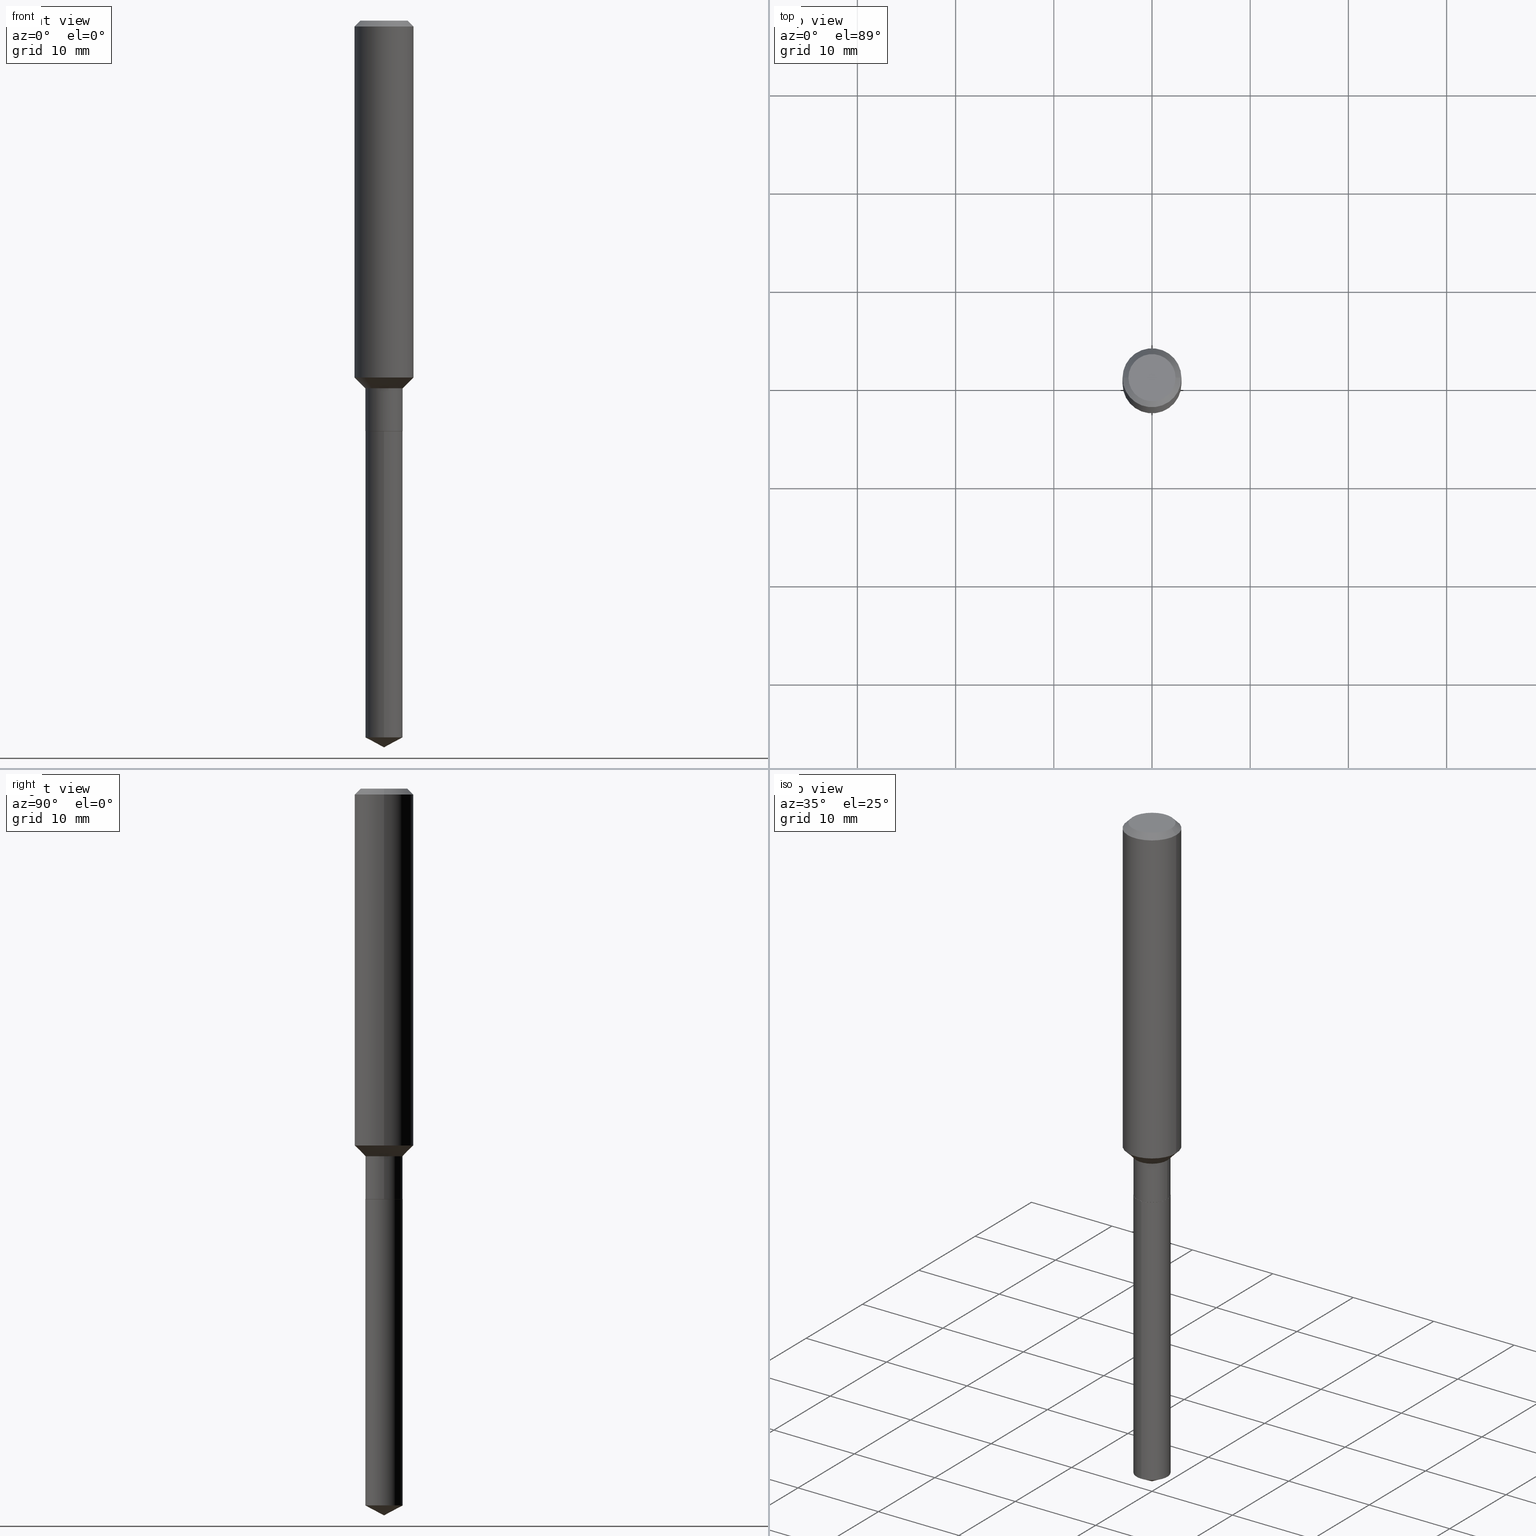
[diagram: canonical four-view strip — front | top / right | iso, engineering-drawing reading convention]
A machine part, canonical four-view strip (front | top / right | iso — engineering-drawing reading convention). The complete STEP part file that produces these views, byte-faithful:
ISO-10303-21;
HEADER;
FILE_DESCRIPTION (( 'STEP AP203' ),
    '1' );
FILE_NAME ('65168.STEP',
    '2024-04-24T20:52:02',
    ( '' ),
    ( '' ),
    'SwSTEP 2.0',
    'SolidWorks 2023',
    '' );
FILE_SCHEMA (( 'CONFIG_CONTROL_DESIGN' ));
ENDSEC;

DATA;
#1 = ORIENTED_EDGE ( 'NONE', *, *, #10, .F. ) ;
#2 = LINE ( 'NONE', #63, #98 ) ;
#3 = VERTEX_POINT ( 'NONE', #489 ) ;
#4 = DIRECTION ( 'NONE',  ( 0.7071067811865486830, -2.468850131082268893E-15, 0.7071067811865464625 ) ) ;
#5 = EDGE_LOOP ( 'NONE', ( #285, #197, #1, #220 ) ) ;
#6 = APPROVAL_ROLE ( '' ) ;
#7 = DATE_TIME_ROLE ( 'classification_date' ) ;
#8 = DIRECTION ( 'NONE',  ( 1.000000000000000000, 0.000000000000000000, 0.000000000000000000 ) ) ;
#9 = VECTOR ( 'NONE', #4, 39.37007874015748143 ) ;
#10 = EDGE_CURVE ( 'NONE', #411, #318, #23, .T. ) ;
#11 = PERSON_AND_ORGANIZATION_ROLE ( 'design_supplier' ) ;
#12 = CARTESIAN_POINT ( 'NONE',  ( -0.07479999999999999150, -4.913304607510389243E-15, -1.473700000000000232 ) ) ;
#13 = CARTESIAN_POINT ( 'NONE',  ( 4.024508014338879870E-29, -5.745930839334164827E-15, -1.645700000000000163 ) ) ;
#14 = CARTESIAN_POINT ( 'NONE',  ( 4.023285279935787629E-29, -5.744185098664743323E-15, -1.645200000000000218 ) ) ;
#15 = CARTESIAN_POINT ( 'NONE',  ( -5.223256082908925685E-16, -0.07480000000000575078, -1.645699999999999941 ) ) ;
#16 = CARTESIAN_POINT ( 'NONE',  ( -8.915570110515794441E-28, 1.272849057502987165E-13, 36.45667874015747856 ) ) ;
#17 = DIRECTION ( 'NONE',  ( -2.445522096007376071E-29, 3.491405024784630103E-15, 1.000000000000000000 ) ) ;
#18 = AXIS2_PLACEMENT_3D ( 'NONE', #317, #228, #429 ) ;
#19 = DIRECTION ( 'NONE',  ( -2.445468806185136877E-29, 3.491481338843145188E-15, 1.000000000000000000 ) ) ;
#20 = AXIS2_PLACEMENT_3D ( 'NONE', #253, #109, #381 ) ;
#21 = EDGE_LOOP ( 'NONE', ( #212, #320, #57, #157 ) ) ;
#22 = CARTESIAN_POINT ( 'NONE',  ( 4.024508014338879870E-29, -5.745930839334164827E-15, -1.645700000000000163 ) ) ;
#23 = CIRCLE ( 'NONE', #359, 0.07479999999999999150 ) ;
#24 = ADVANCED_FACE ( 'NONE', ( #150 ), #121, .T. ) ;
#25 = DIRECTION ( 'NONE',  ( -6.982962677686265922E-15, -1.000000000000000000, 3.652203200085913145E-15 ) ) ;
#26 = SECURITY_CLASSIFICATION ( '', '', #344 ) ;
#27 = EDGE_CURVE ( 'NONE', #441, #215, #427, .T. ) ;
#28 = CLOSED_SHELL ( 'NONE', ( #50, #62, #24, #280, #481 ) ) ;
#29 = ORIENTED_EDGE ( 'NONE', *, *, #80, .F. ) ;
#30 = CARTESIAN_POINT ( 'NONE',  ( 4.024508014338879870E-29, -5.745930839334164827E-15, -1.645700000000000163 ) ) ;
#31 = ORIENTED_EDGE ( 'NONE', *, *, #383, .F. ) ;
#32 = CYLINDRICAL_SURFACE ( 'NONE', #421, 0.1181000000000000799 ) ;
#33 = ORIENTED_EDGE ( 'NONE', *, *, #419, .T. ) ;
#34 = CARTESIAN_POINT ( 'NONE',  ( 0.1181000000000000799, -8.246878922347486570E-16, 5.758764772215004644E-30 ) ) ;
#35 = ORIENTED_EDGE ( 'NONE', *, *, #179, .F. ) ;
#36 = CONICAL_SURFACE ( 'NONE', #471, 0.07430000000000000493, 0.7853981633975507526 ) ;
#37 = CARTESIAN_POINT ( 'NONE',  ( 4.024508014338879870E-29, -5.745930839334164827E-15, -1.645700000000000163 ) ) ;
#38 = CARTESIAN_POINT ( 'NONE',  ( 7.124784074507891012E-29, -1.017185939920754238E-14, -2.913400000000000212 ) ) ;
#39 = ORIENTED_EDGE ( 'NONE', *, *, #383, .T. ) ;
#40 = CARTESIAN_POINT ( 'NONE',  ( 4.023285279935787629E-29, -5.744185098664743323E-15, -1.645200000000000218 ) ) ;
#41 = APPROVAL_ROLE ( '' ) ;
#42 = CARTESIAN_POINT ( 'NONE',  ( 0.07480000000000000537, -6.266510706955676124E-15, -1.645200000000000218 ) ) ;
#43 = EDGE_CURVE ( 'NONE', #318, #368, #270, .T. ) ;
#44 = CARTESIAN_POINT ( 'NONE',  ( 3.603887379675036317E-29, -5.145396049053143934E-15, -1.473700000000000232 ) ) ;
#45 = LINE ( 'NONE', #298, #309 ) ;
#46 = AXIS2_PLACEMENT_3D ( 'NONE', #352, #311, #468 ) ;
#47 = AXIS2_PLACEMENT_3D ( 'NONE', #30, #488, #446 ) ;
#48 = DIRECTION ( 'NONE',  ( 0.000000000000000000, 0.000000000000000000, 1.000000000000000000 ) ) ;
#49 = CARTESIAN_POINT ( 'NONE',  ( -5.223256082908624932E-16, -0.07480000000001003901, -2.873628134511721388 ) ) ;
#50 = ADVANCED_FACE ( 'NONE', ( #124 ), #244, .T. ) ;
#51 = ORIENTED_EDGE ( 'NONE', *, *, #92, .F. ) ;
#52 = CIRCLE ( 'NONE', #451, 0.09447999999999998066 ) ;
#53 = VERTEX_POINT ( 'NONE', #326 ) ;
#54 = ADVANCED_FACE ( 'NONE', ( #131 ), #36, .T. ) ;
#55 = CARTESIAN_POINT ( 'NONE',  ( -8.915570110515794441E-28, 1.272849057502987165E-13, 36.45667874015747856 ) ) ;
#56 =( GEOMETRIC_REPRESENTATION_CONTEXT ( 3 ) GLOBAL_UNCERTAINTY_ASSIGNED_CONTEXT ( ( #423 ) ) GLOBAL_UNIT_ASSIGNED_CONTEXT ( ( #347, #184, #194 ) ) REPRESENTATION_CONTEXT ( 'NONE', 'WORKASPACE' ) );
#57 = ORIENTED_EDGE ( 'NONE', *, *, #161, .F. ) ;
#58 = DIRECTION ( 'NONE',  ( -2.438088387897960049E-29, 3.491481338843145188E-15, 1.000000000000000000 ) ) ;
#59 = CONICAL_SURFACE ( 'NONE', #210, 0.1180999999999999966, 0.7853981633974459475 ) ;
#60 = AXIS2_PLACEMENT_3D ( 'NONE', #185, #146, #465 ) ;
#61 = FACE_OUTER_BOUND ( 'NONE', #333, .T. ) ;
#62 = ADVANCED_FACE ( 'NONE', ( #397 ), #410, .T. ) ;
#63 = CARTESIAN_POINT ( 'NONE',  ( -0.1181000000000000799, 8.391509709326788873E-16, -5.809262341591047988E-30 ) ) ;
#64 = VERTEX_POINT ( 'NONE', #464 ) ;
#65 = PLANE ( 'NONE',  #435 ) ;
#66 = CC_DESIGN_PERSON_AND_ORGANIZATION_ASSIGNMENT ( #144, #141, ( #87 ) ) ;
#67 = ORIENTED_EDGE ( 'NONE', *, *, #75, .T. ) ;
#68 = FACE_OUTER_BOUND ( 'NONE', #434, .T. ) ;
#69 = AXIS2_PLACEMENT_3D ( 'NONE', #473, #180, #460 ) ;
#70 = CARTESIAN_POINT ( 'NONE',  ( 3.497998580367219776E-29, -4.994214907081235414E-15, -1.430400000000000116 ) ) ;
#71 = VERTEX_POINT ( 'NONE', #278 ) ;
#72 = DIRECTION ( 'NONE',  ( -1.000000000000000000, 6.982962677686266711E-15, 0.000000000000000000 ) ) ;
#73 = APPROVAL_STATUS ( 'not_yet_approved' ) ;
#74 = EDGE_LOOP ( 'NONE', ( #249, #51, #140, #112 ) ) ;
#75 = EDGE_CURVE ( 'NONE', #64, #416, #380, .T. ) ;
#76 = VECTOR ( 'NONE', #342, 39.37007874015748143 ) ;
#77 = EDGE_LOOP ( 'NONE', ( #175, #379, #486, #340 ) ) ;
#78 = PERSON_AND_ORGANIZATION_ROLE ( 'design_owner' ) ;
#79 = APPROVAL_STATUS ( 'not_yet_approved' ) ;
#80 = EDGE_CURVE ( 'NONE', #64, #318, #467, .T. ) ;
#81 = PERSON_AND_ORGANIZATION_ROLE ( 'classification_officer' ) ;
#82 = CLOSED_SHELL ( 'NONE', ( #313, #123, #283, #155, #372, #474, #346, #231, #294, #217, #200, #54 ) ) ;
#83 = CIRCLE ( 'NONE', #282, 0.07480000000000000537 ) ;
#84 = EDGE_CURVE ( 'NONE', #3, #368, #263, .T. ) ;
#85 = APPROVAL ( #424, 'UNSPECIFIED' ) ;
#86 = CARTESIAN_POINT ( 'NONE',  ( -5.223256082908924699E-16, -0.07480000000000575078, -1.645699999999999941 ) ) ;
#87 = PRODUCT_DEFINITION_FORMATION_WITH_SPECIFIED_SOURCE ( 'ANY', '', #396, .NOT_KNOWN. ) ;
#88 = VERTEX_POINT ( 'NONE', #171 ) ;
#89 = CIRCLE ( 'NONE', #69, 0.07430000000000000493 ) ;
#90 = APPLICATION_PROTOCOL_DEFINITION ( 'international standard', 'config_control_design', 1994, #246 ) ;
#91 = ORIENTED_EDGE ( 'NONE', *, *, #179, .T. ) ;
#92 = EDGE_CURVE ( 'NONE', #71, #93, #122, .T. ) ;
#93 = VERTEX_POINT ( 'NONE', #137 ) ;
#94 = EDGE_CURVE ( 'NONE', #93, #71, #52, .T. ) ;
#95 = LENGTH_MEASURE_WITH_UNIT ( LENGTH_MEASURE( 0.02539999999999999897 ), #299 );
#96 = ORIENTED_EDGE ( 'NONE', *, *, #306, .T. ) ;
#97 = CARTESIAN_POINT ( 'NONE',  ( 0.1180999999999999966, -8.926936027602933910E-16, -0.02362000000000014435 ) ) ;
#98 = VECTOR ( 'NONE', #206, 39.37007874015748143 ) ;
#99 = CIRCLE ( 'NONE', #447, 0.07430000000000000493 ) ;
#100 = EDGE_LOOP ( 'NONE', ( #143, #375, #296, #169 ) ) ;
#101 = DIRECTION ( 'NONE',  ( 1.000000000000000000, -6.982962677686261977E-15, 0.000000000000000000 ) ) ;
#102 = VERTEX_POINT ( 'NONE', #86 ) ;
#103 = CYLINDRICAL_SURFACE ( 'NONE', #139, 0.1181000000000000799 ) ;
#104 = PERSON_AND_ORGANIZATION ( #431, #477 ) ;
#105 = VECTOR ( 'NONE', #229, 39.37007874015748143 ) ;
#106 = ORIENTED_EDGE ( 'NONE', *, *, #360, .F. ) ;
#107 = DIRECTION ( 'NONE',  ( -1.000000000000000000, 6.982962677686265922E-15, -4.876176775795935793E-29 ) ) ;
#108 = APPROVAL_DATE_TIME ( #376, #174 ) ;
#109 = DIRECTION ( 'NONE',  ( -2.445522096007376351E-29, 3.491405024784630103E-15, 1.000000000000000000 ) ) ;
#110 = FACE_OUTER_BOUND ( 'NONE', #100, .T. ) ;
#111 = CC_DESIGN_PERSON_AND_ORGANIZATION_ASSIGNMENT ( #261, #81, ( #26 ) ) ;
#112 = ORIENTED_EDGE ( 'NONE', *, *, #27, .T. ) ;
#113 = PERSON_AND_ORGANIZATION ( #431, #477 ) ;
#114 = APPROVAL_DATE_TIME ( #349, #85 ) ;
#115 = CIRCLE ( 'NONE', #20, 0.07480000000000000537 ) ;
#116 = APPROVAL_DATE_TIME ( #374, #267 ) ;
#117 = LINE ( 'NONE', #308, #271 ) ;
#118 = CARTESIAN_POINT ( 'NONE',  ( 3.603887379675036317E-29, -5.145396049053143934E-15, -1.473700000000000232 ) ) ;
#119 = DIRECTION ( 'NONE',  ( -2.445468806185136597E-29, 3.491481338843145583E-15, 1.000000000000000000 ) ) ;
#120 = APPROVAL_PERSON_ORGANIZATION ( #221, #174, #6 ) ;
#121 = CONICAL_SURFACE ( 'NONE', #128, 74.04434902938274377, 1.082104136236482050 ) ;
#122 = CIRCLE ( 'NONE', #315, 0.09447999999999998066 ) ;
#123 = ADVANCED_FACE ( 'NONE', ( #295 ), #166, .T. ) ;
#124 = FACE_OUTER_BOUND ( 'NONE', #21, .T. ) ;
#125 = VERTEX_POINT ( 'NONE', #38 ) ;
#126 = ORIENTED_EDGE ( 'NONE', *, *, #238, .T. ) ;
#127 = DIRECTION ( 'NONE',  ( 1.000000000000000000, -6.982962677686268288E-15, 0.000000000000000000 ) ) ;
#128 = AXIS2_PLACEMENT_3D ( 'NONE', #16, #426, #192 ) ;
#129 = CC_DESIGN_PERSON_AND_ORGANIZATION_ASSIGNMENT ( #182, #417, ( #430 ) ) ;
#130 = EDGE_LOOP ( 'NONE', ( #286, #39, #138, #134 ) ) ;
#131 = FACE_OUTER_BOUND ( 'NONE', #164, .T. ) ;
#132 = DIRECTION ( 'NONE',  ( 0.7071067811865459074, -7.319954787623251312E-15, -0.7071067811865492381 ) ) ;
#133 = EDGE_LOOP ( 'NONE', ( #227, #91 ) ) ;
#134 = ORIENTED_EDGE ( 'NONE', *, *, #306, .F. ) ;
#135 = CARTESIAN_POINT ( 'NONE',  ( 5.776197320209328408E-31, -8.246878922347560526E-17, -0.02362000000000014435 ) ) ;
#136 = APPROVAL_PERSON_ORGANIZATION ( #104, #85, #41 ) ;
#137 = CARTESIAN_POINT ( 'NONE',  ( 0.09447999999999998066, -7.704367267948738690E-16, -1.928573779296752193E-17 ) ) ;
#138 = ORIENTED_EDGE ( 'NONE', *, *, #364, .F. ) ;
#139 = AXIS2_PLACEMENT_3D ( 'NONE', #328, #245, #337 ) ;
#140 = ORIENTED_EDGE ( 'NONE', *, *, #191, .T. ) ;
#141 = PERSON_AND_ORGANIZATION_ROLE ( 'creator' ) ;
#142 = DIRECTION ( 'NONE',  ( -2.445468806185136597E-29, 3.491481338843145583E-15, 1.000000000000000000 ) ) ;
#143 = ORIENTED_EDGE ( 'NONE', *, *, #43, .F. ) ;
#144 = PERSON_AND_ORGANIZATION ( #431, #477 ) ;
#145 = DIRECTION ( 'NONE',  ( 1.000000000000000000, -6.982962677686262766E-15, 0.000000000000000000 ) ) ;
#146 = DIRECTION ( 'NONE',  ( -2.445468806185136597E-29, 3.491481338843145583E-15, 1.000000000000000000 ) ) ;
#147 = CONICAL_SURFACE ( 'NONE', #292, 0.07479999999999999150, 0.7853981633974498333 ) ;
#148 = COORDINATED_UNIVERSAL_TIME_OFFSET ( 5, 0, .BEHIND. ) ;
#149 = CARTESIAN_POINT ( 'NONE',  ( 0.07479999999999999150, -5.667721657344076734E-15, -1.473700000000000232 ) ) ;
#150 = FACE_OUTER_BOUND ( 'NONE', #336, .T. ) ;
#151 = CARTESIAN_POINT ( 'NONE',  ( 0.07479999999999999150, -5.223256082909327018E-16, 3.647380228295360164E-30 ) ) ;
#152 = EDGE_CURVE ( 'NONE', #403, #102, #354, .T. ) ;
#153 = VECTOR ( 'NONE', #19, 39.37007874015748143 ) ;
#154 = EDGE_CURVE ( 'NONE', #272, #88, #89, .T. ) ;
#155 = ADVANCED_FACE ( 'NONE', ( #439 ), #147, .T. ) ;
#156 = LINE ( 'NONE', #151, #153 ) ;
#157 = ORIENTED_EDGE ( 'NONE', *, *, #152, .F. ) ;
#158 = DIRECTION ( 'NONE',  ( -6.982962677686266711E-15, -1.000000000000000000, 3.652203200085913145E-15 ) ) ;
#159 = CIRCLE ( 'NONE', #268, 0.07480000000000000537 ) ;
#160 = ORIENTED_EDGE ( 'NONE', *, *, #448, .T. ) ;
#161 = EDGE_CURVE ( 'NONE', #102, #436, #190, .T. ) ;
#162 = DIRECTION ( 'NONE',  ( -0.7071067811865459074, 2.468850131082239706E-15, -0.7071067811865492381 ) ) ;
#163 = DIRECTION ( 'NONE',  ( -2.445468806185136597E-29, 3.491481338843145583E-15, 1.000000000000000000 ) ) ;
#164 = EDGE_LOOP ( 'NONE', ( #195, #250, #343, #418 ) ) ;
#165 = LINE ( 'NONE', #293, #196 ) ;
#166 = CONICAL_SURFACE ( 'NONE', #330, 0.1180999999999999966, 0.7853981633974459475 ) ;
#167 = DIRECTION ( 'NONE',  ( -2.445468806185136597E-29, 3.491481338843145583E-15, 1.000000000000000000 ) ) ;
#168 = DIRECTION ( 'NONE',  ( 1.000000000000000000, -6.982962677686266711E-15, 4.876176775795936353E-29 ) ) ;
#169 = ORIENTED_EDGE ( 'NONE', *, *, #238, .F. ) ;
#170 = EDGE_CURVE ( 'NONE', #403, #53, #115, .T. ) ;
#171 = CARTESIAN_POINT ( 'NONE',  ( 0.07430000000000000493, -6.264764966286254620E-15, -1.645700000000000163 ) ) ;
#172 = EDGE_LOOP ( 'NONE', ( #29, #67, #33, #106 ) ) ;
#173 = DIRECTION ( 'NONE',  ( -2.445468806185136877E-29, 3.491481338843145188E-15, 1.000000000000000000 ) ) ;
#174 = APPROVAL ( #79, 'UNSPECIFIED' ) ;
#175 = ORIENTED_EDGE ( 'NONE', *, *, #94, .F. ) ;
#176 = DATE_AND_TIME ( #385, #327 ) ;
#177 = AXIS2_PLACEMENT_3D ( 'NONE', #70, #163, #444 ) ;
#178 = AXIS2_PLACEMENT_3D ( 'NONE', #118, #260, #145 ) ;
#179 = EDGE_CURVE ( 'NONE', #436, #102, #83, .T. ) ;
#180 = DIRECTION ( 'NONE',  ( -2.445468806185136597E-29, 3.491481338843145583E-15, 1.000000000000000000 ) ) ;
#181 = ORIENTED_EDGE ( 'NONE', *, *, #433, .F. ) ;
#182 = PERSON_AND_ORGANIZATION ( #431, #477 ) ;
#183 = DIRECTION ( 'NONE',  ( 2.445522096007375791E-29, -3.491405024784630103E-15, -1.000000000000000000 ) ) ;
#184 =( NAMED_UNIT ( * ) PLANE_ANGLE_UNIT ( ) SI_UNIT ( $, .RADIAN. ) );
#185 = CARTESIAN_POINT ( 'NONE',  ( 3.603887379675036317E-29, -5.145396049053143934E-15, -1.473700000000000232 ) ) ;
#186 = LOCAL_TIME ( 16, 52, 2.000000000000000000, #303 ) ;
#187 = LINE ( 'NONE', #223, #76 ) ;
#188 = CARTESIAN_POINT ( 'NONE',  ( -0.07479999999999999150, 5.314859663485548786E-16, -3.679363447510669380E-30 ) ) ;
#189 = COORDINATED_UNIVERSAL_TIME_OFFSET ( 5, 0, .BEHIND. ) ;
#190 = CIRCLE ( 'NONE', #350, 0.07480000000000000537 ) ;
#191 = EDGE_CURVE ( 'NONE', #71, #441, #165, .T. ) ;
#192 = DIRECTION ( 'NONE',  ( -6.982962677686265922E-15, -1.000000000000000000, 3.541896320645598734E-15 ) ) ;
#193 = CC_DESIGN_APPROVAL ( #267, ( #87 ) ) ;
#194 =( NAMED_UNIT ( * ) SI_UNIT ( $, .STERADIAN. ) SOLID_ANGLE_UNIT ( ) );
#195 = ORIENTED_EDGE ( 'NONE', *, *, #487, .F. ) ;
#196 = VECTOR ( 'NONE', #162, 39.37007874015748143 ) ;
#197 = ORIENTED_EDGE ( 'NONE', *, *, #80, .T. ) ;
#198 = ORIENTED_EDGE ( 'NONE', *, *, #433, .T. ) ;
#199 = DIRECTION ( 'NONE',  ( -2.445522096007376351E-29, 3.491405024784630103E-15, 1.000000000000000000 ) ) ;
#200 = ADVANCED_FACE ( 'NONE', ( #287 ), #65, .F. ) ;
#201 = CIRCLE ( 'NONE', #224, 0.1180999999999999966 ) ;
#202 = LINE ( 'NONE', #97, #428 ) ;
#203 = ORIENTED_EDGE ( 'NONE', *, *, #362, .T. ) ;
#204 = FACE_OUTER_BOUND ( 'NONE', #452, .T. ) ;
#205 = VECTOR ( 'NONE', #393, 39.37007874015748143 ) ;
#206 = DIRECTION ( 'NONE',  ( -2.445468806185136877E-29, 3.491481338843145188E-15, 1.000000000000000000 ) ) ;
#207 = CIRCLE ( 'NONE', #18, 0.07480000000000000537 ) ;
#208 = EDGE_LOOP ( 'NONE', ( #445, #365, #399, #243 ) ) ;
#209 = FACE_OUTER_BOUND ( 'NONE', #130, .T. ) ;
#210 = AXIS2_PLACEMENT_3D ( 'NONE', #135, #412, #72 ) ;
#211 = CC_DESIGN_PERSON_AND_ORGANIZATION_ASSIGNMENT ( #226, #78, ( #396 ) ) ;
#212 = ORIENTED_EDGE ( 'NONE', *, *, #170, .T. ) ;
#213 = DIRECTION ( 'NONE',  ( -2.445468806185136597E-29, 3.491481338843145583E-15, 1.000000000000000000 ) ) ;
#214 = APPROVAL_ROLE ( '' ) ;
#215 = VERTEX_POINT ( 'NONE', #367 ) ;
#216 = DIRECTION ( 'NONE',  ( -6.982962677686265922E-15, -1.000000000000000000, 3.541896320645598734E-15 ) ) ;
#217 = ADVANCED_FACE ( 'NONE', ( #68 ), #484, .F. ) ;
#218 = DIRECTION ( 'NONE',  ( 1.000000000000000000, -6.982962677686268288E-15, 0.000000000000000000 ) ) ;
#219 = DIRECTION ( 'NONE',  ( -2.445468806185136597E-29, 3.491481338843145583E-15, 1.000000000000000000 ) ) ;
#220 = ORIENTED_EDGE ( 'NONE', *, *, #419, .F. ) ;
#221 = PERSON_AND_ORGANIZATION ( #431, #477 ) ;
#222 = DIRECTION ( 'NONE',  ( -2.445468806185136597E-29, 3.491481338843145583E-15, 1.000000000000000000 ) ) ;
#223 = CARTESIAN_POINT ( 'NONE',  ( -0.07430000000000000493, -5.217997586664410946E-15, -1.645700000000000163 ) ) ;
#224 = AXIS2_PLACEMENT_3D ( 'NONE', #478, #167, #239 ) ;
#225 = DESIGN_CONTEXT ( 'detailed design', #302, 'design' ) ;
#226 = PERSON_AND_ORGANIZATION ( #431, #477 ) ;
#227 = ORIENTED_EDGE ( 'NONE', *, *, #161, .T. ) ;
#228 = DIRECTION ( 'NONE',  ( -2.445522096007376351E-29, 3.491405024784630103E-15, 1.000000000000000000 ) ) ;
#229 = DIRECTION ( 'NONE',  ( -2.445468806185136877E-29, 3.491481338843145188E-15, 1.000000000000000000 ) ) ;
#230 = AXIS2_PLACEMENT_3D ( 'NONE', #40, #119, #101 ) ;
#231 = ADVANCED_FACE ( 'NONE', ( #61 ), #103, .T. ) ;
#232 = DIRECTION ( 'NONE',  ( 1.000000000000000000, -6.982962677686262766E-15, 0.000000000000000000 ) ) ;
#233 = DIRECTION ( 'NONE',  ( 1.000000000000000000, -6.982962677686261977E-15, 0.000000000000000000 ) ) ;
#234 = EDGE_CURVE ( 'NONE', #93, #215, #202, .T. ) ;
#235 = LOCAL_TIME ( 16, 52, 2.000000000000000000, #300 ) ;
#236 = CARTESIAN_POINT ( 'NONE',  ( 7.124785612542370113E-29, -1.017185939920754238E-14, -2.913400000000000212 ) ) ;
#237 = CONICAL_SURFACE ( 'NONE', #322, 0.07430000000000000493, 0.7853981633975507526 ) ;
#238 = EDGE_CURVE ( 'NONE', #368, #3, #440, .T. ) ;
#239 = DIRECTION ( 'NONE',  ( 1.000000000000000000, -6.982962677686266711E-15, 0.000000000000000000 ) ) ;
#240 = AXIS2_PLACEMENT_3D ( 'NONE', #363, #284, #442 ) ;
#241 = CIRCLE ( 'NONE', #60, 0.07479999999999999150 ) ;
#242 = DIRECTION ( 'NONE',  ( 2.438088387897960049E-29, -3.491481338843145188E-15, -1.000000000000000000 ) ) ;
#243 = ORIENTED_EDGE ( 'NONE', *, *, #355, .F. ) ;
#244 = CYLINDRICAL_SURFACE ( 'NONE', #485, 0.07480000000000000537 ) ;
#245 = DIRECTION ( 'NONE',  ( -2.445468806185136597E-29, 3.491481338843145583E-15, 1.000000000000000000 ) ) ;
#246 = APPLICATION_CONTEXT ( 'configuration controlled 3d designs of mechanical parts and assemblies' ) ;
#247 = CARTESIAN_POINT ( 'NONE',  ( 3.603887379675036317E-29, -5.145396049053143934E-15, -1.473700000000000232 ) ) ;
#248 = FACE_OUTER_BOUND ( 'NONE', #5, .T. ) ;
#249 = ORIENTED_EDGE ( 'NONE', *, *, #234, .F. ) ;
#250 = ORIENTED_EDGE ( 'NONE', *, *, #154, .T. ) ;
#251 = FACE_OUTER_BOUND ( 'NONE', #74, .T. ) ;
#252 = CALENDAR_DATE ( 2024, 24, 4 ) ;
#253 = CARTESIAN_POINT ( 'NONE',  ( 7.027433399596411155E-29, -1.003312529824280430E-14, -2.873628134511721388 ) ) ;
#254 = CARTESIAN_POINT ( 'NONE',  ( 0.000000000000000000, 0.000000000000000000, 0.000000000000000000 ) ) ;
#255 = ORIENTED_EDGE ( 'NONE', *, *, #154, .F. ) ;
#256 = SHAPE_DEFINITION_REPRESENTATION ( #357, #353 ) ;
#257 = CARTESIAN_POINT ( 'NONE',  ( 4.024508014338879870E-29, -5.745930839334164827E-15, -1.645700000000000163 ) ) ;
#258 = ORIENTED_EDGE ( 'NONE', *, *, #27, .F. ) ;
#259 = DIRECTION ( 'NONE',  ( -6.982962677686265922E-15, -1.000000000000000000, 3.652203200085913145E-15 ) ) ;
#260 = DIRECTION ( 'NONE',  ( -2.445468806185136597E-29, 3.491481338843145583E-15, 1.000000000000000000 ) ) ;
#261 = PERSON_AND_ORGANIZATION ( #431, #477 ) ;
#262 = DIRECTION ( 'NONE',  ( -2.445522096007376351E-29, 3.491405024784630103E-15, 1.000000000000000000 ) ) ;
#263 = CIRCLE ( 'NONE', #177, 0.1181000000000001632 ) ;
#264 = MECHANICAL_CONTEXT ( 'NONE', #246, 'mechanical' ) ;
#265 = CARTESIAN_POINT ( 'NONE',  ( 5.314859663486254817E-16, 0.07479999999999425997, -1.645700000000000385 ) ) ;
#266 = LINE ( 'NONE', #382, #305 ) ;
#267 = APPROVAL ( #73, 'UNSPECIFIED' ) ;
#268 = AXIS2_PLACEMENT_3D ( 'NONE', #14, #307, #233 ) ;
#269 = CARTESIAN_POINT ( 'NONE',  ( 0.000000000000000000, 0.000000000000000000, 0.000000000000000000 ) ) ;
#270 = LINE ( 'NONE', #420, #321 ) ;
#271 = VECTOR ( 'NONE', #472, 39.37007874015748854 ) ;
#272 = VERTEX_POINT ( 'NONE', #405 ) ;
#273 = CC_DESIGN_DATE_AND_TIME_ASSIGNMENT ( #176, #7, ( #26 ) ) ;
#274 = DIRECTION ( 'NONE',  ( 6.982962677686265922E-15, 1.000000000000000000, -3.491405024784630103E-15 ) ) ;
#275 = ORIENTED_EDGE ( 'NONE', *, *, #390, .F. ) ;
#276 = CONICAL_SURFACE ( 'NONE', #178, 0.07479999999999999150, 0.7853981633974498333 ) ;
#277 = ORIENTED_EDGE ( 'NONE', *, *, #92, .T. ) ;
#278 = CARTESIAN_POINT ( 'NONE',  ( -0.09447999999999998066, 7.009847083995354710E-16, -1.928573779297727792E-17 ) ) ;
#279 = DIRECTION ( 'NONE',  ( -0.7071067811865486830, 7.493145998870358893E-15, 0.7071067811865464625 ) ) ;
#280 = ADVANCED_FACE ( 'NONE', ( #204 ), #369, .T. ) ;
#281 = DIRECTION ( 'NONE',  ( 1.000000000000000000, -6.982962677686267499E-15, 4.875432709231658792E-29 ) ) ;
#282 = AXIS2_PLACEMENT_3D ( 'NONE', #257, #377, #25 ) ;
#283 = ADVANCED_FACE ( 'NONE', ( #209 ), #32, .T. ) ;
#284 = DIRECTION ( 'NONE',  ( -2.445468806185136597E-29, 3.491481338843145583E-15, 1.000000000000000000 ) ) ;
#285 = ORIENTED_EDGE ( 'NONE', *, *, #456, .T. ) ;
#286 = ORIENTED_EDGE ( 'NONE', *, *, #84, .T. ) ;
#287 = FACE_OUTER_BOUND ( 'NONE', #476, .T. ) ;
#288 = PRODUCT_RELATED_PRODUCT_CATEGORY ( 'detail', '', ( #396 ) ) ;
#289 = ORIENTED_EDGE ( 'NONE', *, *, #43, .T. ) ;
#290 = CARTESIAN_POINT ( 'NONE',  ( 4.716267017698007905E-46, -6.733579360998555036E-32, -1.928573779297252010E-17 ) ) ;
#291 = EDGE_LOOP ( 'NONE', ( #449, #198, #401 ) ) ;
#292 = AXIS2_PLACEMENT_3D ( 'NONE', #247, #142, #454 ) ;
#293 = CARTESIAN_POINT ( 'NONE',  ( -0.1180999999999999966, 7.422191030112725094E-16, -0.02362000000000014435 ) ) ;
#294 = ADVANCED_FACE ( 'NONE', ( #251 ), #59, .T. ) ;
#295 = FACE_OUTER_BOUND ( 'NONE', #77, .T. ) ;
#296 = ORIENTED_EDGE ( 'NONE', *, *, #325, .T. ) ;
#297 = DATE_AND_TIME ( #339, #425 ) ;
#298 = CARTESIAN_POINT ( 'NONE',  ( 5.314859663485952091E-16, 0.07479999999999425997, -1.645700000000000385 ) ) ;
#299 =( LENGTH_UNIT ( ) NAMED_UNIT ( * ) SI_UNIT ( $, .METRE. ) );
#300 = COORDINATED_UNIVERSAL_TIME_OFFSET ( 5, 0, .BEHIND. ) ;
#301 = CC_DESIGN_APPROVAL ( #85, ( #430 ) ) ;
#302 = APPLICATION_CONTEXT ( 'configuration controlled 3d designs of mechanical parts and assemblies' ) ;
#303 = COORDINATED_UNIVERSAL_TIME_OFFSET ( 5, 0, .BEHIND. ) ;
#304 = DIRECTION ( 'NONE',  ( -2.445468806185136597E-29, 3.491481338843145583E-15, 1.000000000000000000 ) ) ;
#305 = VECTOR ( 'NONE', #462, 39.37007874015748143 ) ;
#306 = EDGE_CURVE ( 'NONE', #3, #215, #373, .T. ) ;
#307 = DIRECTION ( 'NONE',  ( -2.445468806185136597E-29, 3.491481338843145583E-15, 1.000000000000000000 ) ) ;
#308 = CARTESIAN_POINT ( 'NONE',  ( 7.124608676386970473E-29, -1.017211057929974181E-14, -2.913400000000000212 ) ) ;
#309 = VECTOR ( 'NONE', #345, 39.37007874015748143 ) ;
#310 = DIRECTION ( 'NONE',  ( -1.000000000000000000, 6.982962677686266711E-15, 0.000000000000000000 ) ) ;
#311 = DIRECTION ( 'NONE',  ( -2.445468806185136597E-29, 3.491481338843145583E-15, 1.000000000000000000 ) ) ;
#312 = APPROVAL_PERSON_ORGANIZATION ( #413, #267, #214 ) ;
#313 = ADVANCED_FACE ( 'NONE', ( #386 ), #237, .T. ) ;
#314 = DIRECTION ( 'NONE',  ( -2.445468806185136597E-29, 3.491481338843145583E-15, 1.000000000000000000 ) ) ;
#315 = AXIS2_PLACEMENT_3D ( 'NONE', #406, #370, #335 ) ;
#316 = AXIS2_PLACEMENT_3D ( 'NONE', #269, #219, #168 ) ;
#317 = CARTESIAN_POINT ( 'NONE',  ( 7.027433399596411155E-29, -1.003312529824280430E-14, -2.873628134511721388 ) ) ;
#318 = VERTEX_POINT ( 'NONE', #12 ) ;
#319 = DIMENSIONAL_EXPONENTS ( 1.000000000000000000, 0.000000000000000000, 0.000000000000000000, 0.000000000000000000, 0.000000000000000000, 0.000000000000000000, 0.000000000000000000 ) ;
#320 = ORIENTED_EDGE ( 'NONE', *, *, #409, .T. ) ;
#321 = VECTOR ( 'NONE', #279, 39.37007874015748143 ) ;
#322 = AXIS2_PLACEMENT_3D ( 'NONE', #388, #304, #218 ) ;
#323 = ORIENTED_EDGE ( 'NONE', *, *, #325, .F. ) ;
#324 = AXIS2_PLACEMENT_3D ( 'NONE', #254, #443, #414 ) ;
#325 = EDGE_CURVE ( 'NONE', #411, #3, #341, .T. ) ;
#326 = CARTESIAN_POINT ( 'NONE',  ( 5.314859663486251858E-16, 0.07479999999998998561, -2.873628134511721388 ) ) ;
#327 = LOCAL_TIME ( 16, 52, 2.000000000000000000, #148 ) ;
#328 = CARTESIAN_POINT ( 'NONE',  ( 0.000000000000000000, 0.000000000000000000, 0.000000000000000000 ) ) ;
#329 = FACE_OUTER_BOUND ( 'NONE', #133, .T. ) ;
#330 = AXIS2_PLACEMENT_3D ( 'NONE', #432, #351, #310 ) ;
#331 = ORIENTED_EDGE ( 'NONE', *, *, #448, .F. ) ;
#332 = CYLINDRICAL_SURFACE ( 'NONE', #324, 0.07479999999999999150 ) ;
#333 = EDGE_LOOP ( 'NONE', ( #31, #126, #96, #258 ) ) ;
#334 = CARTESIAN_POINT ( 'NONE',  ( 0.000000000000000000, 0.000000000000000000, 0.000000000000000000 ) ) ;
#335 = DIRECTION ( 'NONE',  ( 1.000000000000000000, -6.982962677686267499E-15, 4.875432709231658792E-29 ) ) ;
#336 = EDGE_LOOP ( 'NONE', ( #181, #203, #331 ) ) ;
#337 = DIRECTION ( 'NONE',  ( 1.000000000000000000, -6.982962677686266711E-15, 4.876176775795936353E-29 ) ) ;
#338 = AXIS2_PLACEMENT_3D ( 'NONE', #463, #48, #8 ) ;
#339 = CALENDAR_DATE ( 2024, 24, 4 ) ;
#340 = ORIENTED_EDGE ( 'NONE', *, *, #191, .F. ) ;
#341 = LINE ( 'NONE', #149, #9 ) ;
#342 = DIRECTION ( 'NONE',  ( -0.7071067811866199593, 7.493145998870616062E-15, 0.7071067811864750752 ) ) ;
#343 = ORIENTED_EDGE ( 'NONE', *, *, #355, .T. ) ;
#344 = SECURITY_CLASSIFICATION_LEVEL ( 'unclassified' ) ;
#345 = DIRECTION ( 'NONE',  ( -2.445522096007376071E-29, 3.491405024784630103E-15, 1.000000000000000000 ) ) ;
#346 = ADVANCED_FACE ( 'NONE', ( #110 ), #276, .T. ) ;
#347 =( CONVERSION_BASED_UNIT ( 'INCH', #95 ) LENGTH_UNIT ( ) NAMED_UNIT ( #319 ) );
#348 = APPLICATION_PROTOCOL_DEFINITION ( 'international standard', 'config_control_design', 1994, #302 ) ;
#349 = DATE_AND_TIME ( #252, #235 ) ;
#350 = AXIS2_PLACEMENT_3D ( 'NONE', #450, #262, #259 ) ;
#351 = DIRECTION ( 'NONE',  ( 2.445468806185136597E-29, -3.491481338843145583E-15, -1.000000000000000000 ) ) ;
#352 = CARTESIAN_POINT ( 'NONE',  ( 5.776197320209328408E-31, -8.246878922347560526E-17, -0.02362000000000014435 ) ) ;
#353 = ADVANCED_BREP_SHAPE_REPRESENTATION ( '65168', ( #455, #459, #338 ), #56 ) ;
#354 = LINE ( 'NONE', #15, #402 ) ;
#355 = EDGE_CURVE ( 'NONE', #88, #416, #266, .T. ) ;
#356 = ORIENTED_EDGE ( 'NONE', *, *, #10, .T. ) ;
#357 = PRODUCT_DEFINITION_SHAPE ( 'NONE', 'NONE',  #430 ) ;
#358 = ORIENTED_EDGE ( 'NONE', *, *, #152, .T. ) ;
#359 = AXIS2_PLACEMENT_3D ( 'NONE', #44, #314, #232 ) ;
#360 = EDGE_CURVE ( 'NONE', #318, #411, #241, .T. ) ;
#361 = AXIS2_PLACEMENT_3D ( 'NONE', #55, #199, #216 ) ;
#362 = EDGE_CURVE ( 'NONE', #125, #403, #117, .T. ) ;
#363 = CARTESIAN_POINT ( 'NONE',  ( 3.497998580367219776E-29, -4.994214907081235414E-15, -1.430400000000000116 ) ) ;
#364 = EDGE_CURVE ( 'NONE', #215, #441, #201, .T. ) ;
#365 = ORIENTED_EDGE ( 'NONE', *, *, #487, .T. ) ;
#366 = DIRECTION ( 'NONE',  ( -2.445468806185136597E-29, 3.491481338843145583E-15, 1.000000000000000000 ) ) ;
#367 = CARTESIAN_POINT ( 'NONE',  ( 0.1180999999999999966, -9.071566814582237199E-16, -0.02362000000000014435 ) ) ;
#368 = VERTEX_POINT ( 'NONE', #482 ) ;
#369 = CYLINDRICAL_SURFACE ( 'NONE', #47, 0.07480000000000000537 ) ;
#370 = DIRECTION ( 'NONE',  ( -2.445468806185136597E-29, 3.491481338843145583E-15, 1.000000000000000000 ) ) ;
#371 = ORIENTED_EDGE ( 'NONE', *, *, #409, .F. ) ;
#372 = ADVANCED_FACE ( 'NONE', ( #248 ), #332, .T. ) ;
#373 = LINE ( 'NONE', #34, #395 ) ;
#374 = DATE_AND_TIME ( #458, #186 ) ;
#375 = ORIENTED_EDGE ( 'NONE', *, *, #360, .T. ) ;
#376 = DATE_AND_TIME ( #422, #398 ) ;
#377 = DIRECTION ( 'NONE',  ( -2.445522096007376351E-29, 3.491405024784630103E-15, 1.000000000000000000 ) ) ;
#378 = PLANE ( 'NONE',  #384 ) ;
#379 = ORIENTED_EDGE ( 'NONE', *, *, #234, .T. ) ;
#380 = CIRCLE ( 'NONE', #230, 0.07480000000000000537 ) ;
#381 = DIRECTION ( 'NONE',  ( -6.982962677686266711E-15, -1.000000000000000000, 0.000000000000000000 ) ) ;
#382 = CARTESIAN_POINT ( 'NONE',  ( 0.07430000000000000493, -6.264764966286254620E-15, -1.645700000000000163 ) ) ;
#383 = EDGE_CURVE ( 'NONE', #368, #441, #2, .T. ) ;
#384 = AXIS2_PLACEMENT_3D ( 'NONE', #37, #183, #274 ) ;
#385 = CALENDAR_DATE ( 2024, 24, 4 ) ;
#386 = FACE_OUTER_BOUND ( 'NONE', #208, .T. ) ;
#387 = CARTESIAN_POINT ( 'NONE',  ( 0.07479999999999999150, -5.667721657344076734E-15, -1.473700000000000232 ) ) ;
#388 = CARTESIAN_POINT ( 'NONE',  ( 4.024508014338879870E-29, -5.745930839334164827E-15, -1.645700000000000163 ) ) ;
#389 = DIRECTION ( 'NONE',  ( 1.000000000000000000, -6.982962677686268288E-15, 0.000000000000000000 ) ) ;
#390 = EDGE_CURVE ( 'NONE', #88, #272, #99, .T. ) ;
#391 = CYLINDRICAL_SURFACE ( 'NONE', #316, 0.07479999999999999150 ) ;
#392 = CC_DESIGN_SECURITY_CLASSIFICATION ( #26, ( #87 ) ) ;
#393 = DIRECTION ( 'NONE',  ( 6.273719981627750299E-15, 0.8829475928589275435, 0.4694715627858896956 ) ) ;
#394 = ORIENTED_EDGE ( 'NONE', *, *, #94, .T. ) ;
#395 = VECTOR ( 'NONE', #173, 39.37007874015748143 ) ;
#396 = PRODUCT ( '65168', '65168', '', ( #264 ) ) ;
#397 = FACE_OUTER_BOUND ( 'NONE', #291, .T. ) ;
#398 = LOCAL_TIME ( 16, 52, 2.000000000000000000, #461 ) ;
#399 = ORIENTED_EDGE ( 'NONE', *, *, #456, .F. ) ;
#400 = CARTESIAN_POINT ( 'NONE',  ( 4.024508014338879870E-29, -5.745930839334164827E-15, -1.645700000000000163 ) ) ;
#401 = ORIENTED_EDGE ( 'NONE', *, *, #170, .F. ) ;
#402 = VECTOR ( 'NONE', #17, 39.37007874015748143 ) ;
#403 = VERTEX_POINT ( 'NONE', #49 ) ;
#404 = DIRECTION ( 'NONE',  ( -2.445522096007376351E-29, 3.491405024784630103E-15, 1.000000000000000000 ) ) ;
#405 = CARTESIAN_POINT ( 'NONE',  ( -0.07430000000000000493, -5.215348359490299745E-15, -1.645700000000000163 ) ) ;
#406 = CARTESIAN_POINT ( 'NONE',  ( 4.716267017698007905E-46, -6.733579360998555036E-32, -1.928573779297252010E-17 ) ) ;
#407 = ORIENTED_EDGE ( 'NONE', *, *, #84, .F. ) ;
#408 = DIRECTION ( 'NONE',  ( 1.000000000000000000, -6.982962677686265922E-15, 4.876176775795935793E-29 ) ) ;
#409 = EDGE_CURVE ( 'NONE', #53, #436, #45, .T. ) ;
#410 = CONICAL_SURFACE ( 'NONE', #361, 74.04434902938274377, 1.082104136236482050 ) ;
#411 = VERTEX_POINT ( 'NONE', #387 ) ;
#412 = DIRECTION ( 'NONE',  ( 2.445468806185136597E-29, -3.491481338843145583E-15, -1.000000000000000000 ) ) ;
#413 = PERSON_AND_ORGANIZATION ( #431, #477 ) ;
#414 = DIRECTION ( 'NONE',  ( 1.000000000000000000, -6.982962677686266711E-15, 4.876176775795936353E-29 ) ) ;
#415 = DIRECTION ( 'NONE',  ( -2.445468806185136597E-29, 3.491481338843145583E-15, 1.000000000000000000 ) ) ;
#416 = VERTEX_POINT ( 'NONE', #42 ) ;
#417 = PERSON_AND_ORGANIZATION_ROLE ( 'creator' ) ;
#418 = ORIENTED_EDGE ( 'NONE', *, *, #75, .F. ) ;
#419 = EDGE_CURVE ( 'NONE', #416, #411, #156, .T. ) ;
#420 = CARTESIAN_POINT ( 'NONE',  ( -0.07479999999999999150, -4.613910082704589154E-15, -1.473700000000000232 ) ) ;
#421 = AXIS2_PLACEMENT_3D ( 'NONE', #334, #213, #490 ) ;
#422 = CALENDAR_DATE ( 2024, 24, 4 ) ;
#423 = UNCERTAINTY_MEASURE_WITH_UNIT (LENGTH_MEASURE( 1.000000000000000082E-05 ), #347, 'distance_accuracy_value', 'NONE');
#424 = APPROVAL_STATUS ( 'not_yet_approved' ) ;
#425 = LOCAL_TIME ( 16, 52, 2.000000000000000000, #189 ) ;
#426 = DIRECTION ( 'NONE',  ( -2.445522096007376351E-29, 3.491405024784630103E-15, 1.000000000000000000 ) ) ;
#427 = CIRCLE ( 'NONE', #46, 0.1180999999999999966 ) ;
#428 = VECTOR ( 'NONE', #132, 39.37007874015748143 ) ;
#429 = DIRECTION ( 'NONE',  ( -6.982962677686266711E-15, -1.000000000000000000, 0.000000000000000000 ) ) ;
#430 = PRODUCT_DEFINITION ( 'UNKNOWN', '', #87, #225 ) ;
#431 = PERSON ( 'UNSPECIFIED', 'UNSPECIFIED', 'UNSPECIFIED', ('UNSPECIFIED'), ('UNSPECIFIED'), ('UNSPECIFIED') ) ;
#432 = CARTESIAN_POINT ( 'NONE',  ( 5.776197320209328408E-31, -8.246878922347560526E-17, -0.02362000000000014435 ) ) ;
#433 = EDGE_CURVE ( 'NONE', #125, #53, #475, .T. ) ;
#434 = EDGE_LOOP ( 'NONE', ( #277, #394 ) ) ;
#435 = AXIS2_PLACEMENT_3D ( 'NONE', #400, #58, #408 ) ;
#436 = VERTEX_POINT ( 'NONE', #265 ) ;
#437 = CC_DESIGN_DATE_AND_TIME_ASSIGNMENT ( #297, #453, ( #430 ) ) ;
#438 = CARTESIAN_POINT ( 'NONE',  ( 2.358133508849003952E-46, -3.366789680499277518E-32, -9.642868896486260050E-18 ) ) ;
#439 = FACE_OUTER_BOUND ( 'NONE', #457, .T. ) ;
#440 = CIRCLE ( 'NONE', #240, 0.1181000000000001632 ) ;
#441 = VERTEX_POINT ( 'NONE', #470 ) ;
#442 = DIRECTION ( 'NONE',  ( 1.000000000000000000, -6.982962677686270655E-15, 0.000000000000000000 ) ) ;
#443 = DIRECTION ( 'NONE',  ( -2.445468806185136597E-29, 3.491481338843145583E-15, 1.000000000000000000 ) ) ;
#444 = DIRECTION ( 'NONE',  ( 1.000000000000000000, -6.982962677686270655E-15, 0.000000000000000000 ) ) ;
#445 = ORIENTED_EDGE ( 'NONE', *, *, #390, .T. ) ;
#446 = DIRECTION ( 'NONE',  ( -6.982962677686266711E-15, -1.000000000000000000, 3.652203200085913145E-15 ) ) ;
#447 = AXIS2_PLACEMENT_3D ( 'NONE', #13, #222, #389 ) ;
#448 = EDGE_CURVE ( 'NONE', #53, #403, #207, .T. ) ;
#449 = ORIENTED_EDGE ( 'NONE', *, *, #362, .F. ) ;
#450 = CARTESIAN_POINT ( 'NONE',  ( 4.024508014338879870E-29, -5.745930839334164827E-15, -1.645700000000000163 ) ) ;
#451 = AXIS2_PLACEMENT_3D ( 'NONE', #290, #415, #281 ) ;
#452 = EDGE_LOOP ( 'NONE', ( #371, #160, #358, #35 ) ) ;
#453 = DATE_TIME_ROLE ( 'creation_date' ) ;
#454 = DIRECTION ( 'NONE',  ( 1.000000000000000000, -6.982962677686262766E-15, 0.000000000000000000 ) ) ;
#455 = MANIFOLD_SOLID_BREP ( 'Body-Move/Copy2[1]', #28 ) ;
#456 = EDGE_CURVE ( 'NONE', #416, #64, #159, .T. ) ;
#457 = EDGE_LOOP ( 'NONE', ( #356, #289, #407, #323 ) ) ;
#458 = CALENDAR_DATE ( 2024, 24, 4 ) ;
#459 = MANIFOLD_SOLID_BREP ( 'Body-Move/Copy2[2]', #82 ) ;
#460 = DIRECTION ( 'NONE',  ( 1.000000000000000000, -6.982962677686268288E-15, 0.000000000000000000 ) ) ;
#461 = COORDINATED_UNIVERSAL_TIME_OFFSET ( 5, 0, .BEHIND. ) ;
#462 = DIRECTION ( 'NONE',  ( 0.7071067811866199593, -2.468850131083015945E-15, 0.7071067811864750752 ) ) ;
#463 = CARTESIAN_POINT ( 'NONE',  ( 0.000000000000000000, 0.000000000000000000, 0.000000000000000000 ) ) ;
#464 = CARTESIAN_POINT ( 'NONE',  ( -0.07480000000000000537, -4.913304607510389243E-15, -1.645200000000000218 ) ) ;
#465 = DIRECTION ( 'NONE',  ( 1.000000000000000000, -6.982962677686262766E-15, 0.000000000000000000 ) ) ;
#466 = FACE_OUTER_BOUND ( 'NONE', #172, .T. ) ;
#467 = LINE ( 'NONE', #188, #105 ) ;
#468 = DIRECTION ( 'NONE',  ( 1.000000000000000000, -6.982962677686266711E-15, 0.000000000000000000 ) ) ;
#469 = CC_DESIGN_PERSON_AND_ORGANIZATION_ASSIGNMENT ( #113, #11, ( #87 ) ) ;
#470 = CARTESIAN_POINT ( 'NONE',  ( -0.1180999999999999966, -1.699190877219676055E-15, -0.02362000000000014435 ) ) ;
#471 = AXIS2_PLACEMENT_3D ( 'NONE', #480, #366, #127 ) ;
#472 = DIRECTION ( 'NONE',  ( -6.165590087286818674E-15, -0.8829475928589241018, 0.4694715627858958573 ) ) ;
#473 = CARTESIAN_POINT ( 'NONE',  ( 4.024508014338879870E-29, -5.745930839334164827E-15, -1.645700000000000163 ) ) ;
#474 = ADVANCED_FACE ( 'NONE', ( #466 ), #391, .T. ) ;
#475 = LINE ( 'NONE', #236, #205 ) ;
#476 = EDGE_LOOP ( 'NONE', ( #275, #255 ) ) ;
#477 = ORGANIZATION ( 'UNSPECIFIED', 'UNSPECIFIED', '' ) ;
#478 = CARTESIAN_POINT ( 'NONE',  ( 5.776197320209328408E-31, -8.246878922347560526E-17, -0.02362000000000014435 ) ) ;
#479 = AXIS2_PLACEMENT_3D ( 'NONE', #438, #242, #107 ) ;
#480 = CARTESIAN_POINT ( 'NONE',  ( 4.024508014338879870E-29, -5.745930839334164827E-15, -1.645700000000000163 ) ) ;
#481 = ADVANCED_FACE ( 'NONE', ( #329 ), #378, .F. ) ;
#482 = CARTESIAN_POINT ( 'NONE',  ( -0.1181000000000001632, -4.155063936148555639E-15, -1.430400000000000116 ) ) ;
#483 = CC_DESIGN_APPROVAL ( #174, ( #26 ) ) ;
#484 = PLANE ( 'NONE',  #479 ) ;
#485 = AXIS2_PLACEMENT_3D ( 'NONE', #22, #404, #158 ) ;
#486 = ORIENTED_EDGE ( 'NONE', *, *, #364, .T. ) ;
#487 = EDGE_CURVE ( 'NONE', #272, #64, #187, .T. ) ;
#488 = DIRECTION ( 'NONE',  ( -2.445522096007376351E-29, 3.491405024784630103E-15, 1.000000000000000000 ) ) ;
#489 = CARTESIAN_POINT ( 'NONE',  ( 0.1181000000000001632, -5.818902799315985254E-15, -1.430400000000000116 ) ) ;
#490 = DIRECTION ( 'NONE',  ( 1.000000000000000000, -6.982962677686266711E-15, 4.876176775795936353E-29 ) ) ;
ENDSEC;
END-ISO-10303-21;
